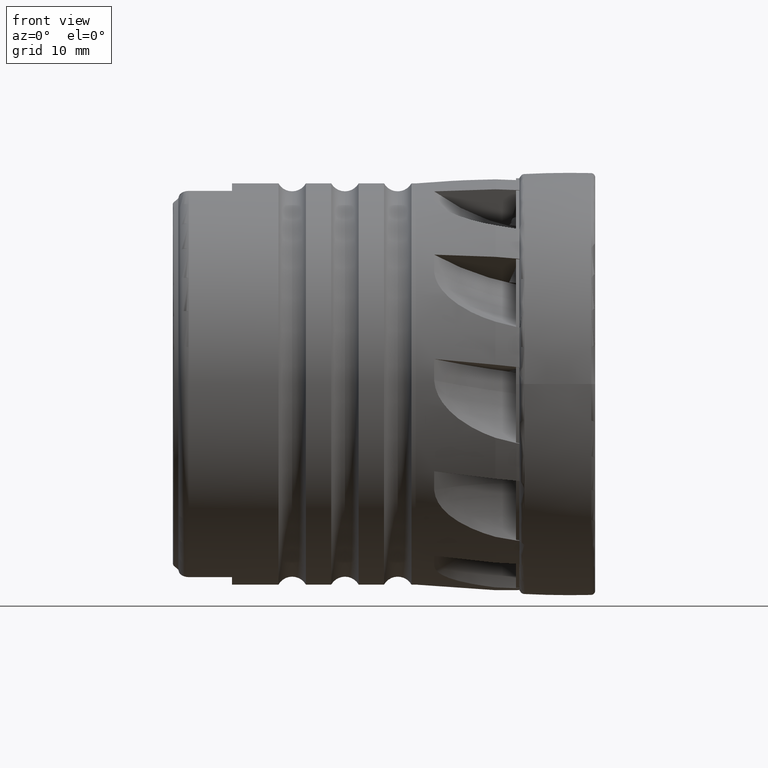
[diagram: clean part render]
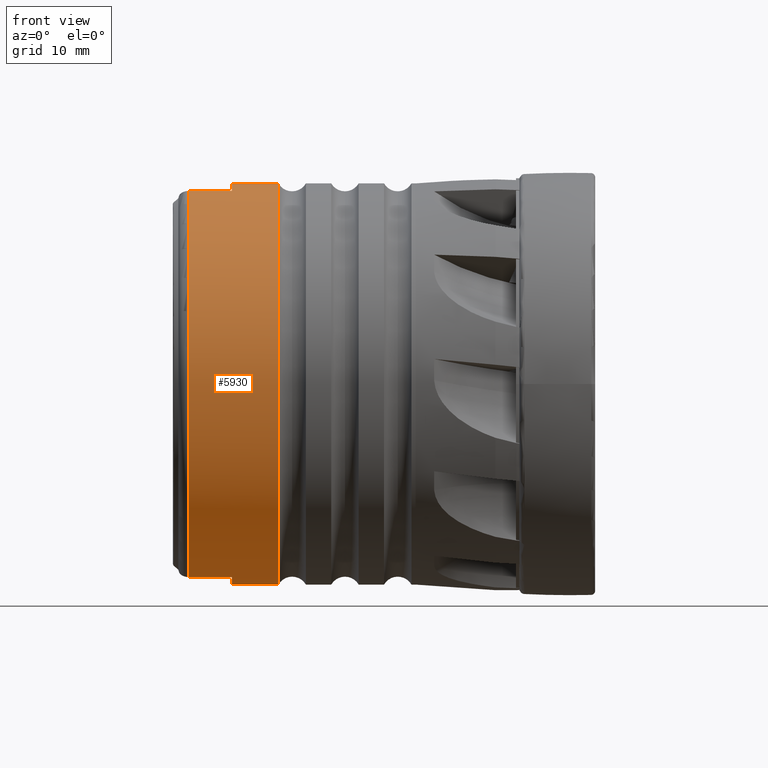
[diagram: same view with one face highlighted and labeled with its STEP entity id]
A machine part, front view. The second image highlights one B-rep face of the part: STEP entity #5930.
In plain terms, the highlighted cylindrical surface (partial cylindrical patch) has radius 19 mm, axis along (1, -0, -0).
Its self-contained STEP definition (entity closure, byte-faithful):
#22 = CARTESIAN_POINT ( 'NONE',  ( -29.54807621135331500, 0.0000000000000000000, -19.00000000000000000 ) ) ;
#33 = CARTESIAN_POINT ( 'NONE',  ( -33.94999999999999600, 0.0000000000000000000, -19.00000000000000000 ) ) ;
#53 = CARTESIAN_POINT ( 'NONE',  ( -29.54807621135331500, 2.326828918379971000E-015, 19.00000000000000000 ) ) ;
#64 = CARTESIAN_POINT ( 'NONE',  ( -33.94999999999999600, 2.326828918379971000E-015, 19.00000000000000000 ) ) ;
#190 = CARTESIAN_POINT ( 'NONE',  ( -33.94999999999999600, -5.145316538372424200, -18.29004422411141200 ) ) ;
#195 = CARTESIAN_POINT ( 'NONE',  ( -38.04999999999999000, -5.145316538372423300, -18.29004422411141200 ) ) ;
#197 = CARTESIAN_POINT ( 'NONE',  ( -33.94999999999999600, -5.145316538372426900, 18.29004422411141200 ) ) ;
#216 = CARTESIAN_POINT ( 'NONE',  ( -38.04999999999999000, -5.145316538372426000, 18.29004422411141200 ) ) ;
#370 = VERTEX_POINT ( 'NONE', #22 ) ;
#381 = VERTEX_POINT ( 'NONE', #33 ) ;
#401 = VERTEX_POINT ( 'NONE', #53 ) ;
#412 = VERTEX_POINT ( 'NONE', #64 ) ;
#1379 = VERTEX_POINT ( 'NONE', #190 ) ;
#1384 = VERTEX_POINT ( 'NONE', #195 ) ;
#1386 = VERTEX_POINT ( 'NONE', #197 ) ;
#1405 = VERTEX_POINT ( 'NONE', #216 ) ;
#2036 = CARTESIAN_POINT ( 'NONE',  ( -38.04999999999999000, 0.0000000000000000000, 0.0000000000000000000 ) ) ;
#2037 = DIRECTION ( 'NONE',  ( 1.000000000000000000, -0.0000000000000000000, -0.0000000000000000000 ) ) ;
#2038 = DIRECTION ( 'NONE',  ( 0.0000000000000000000, 0.0000000000000000000, -1.000000000000000000 ) ) ;
#2611 = EDGE_LOOP ( 'NONE', ( #2718, #2720, #2722, #2724, #2726, #2728, #2730, #2732 ) ) ;
#2718 = ORIENTED_EDGE ( 'NONE', *, *, #9003, .F. ) ;
#2720 = ORIENTED_EDGE ( 'NONE', *, *, #6105, .F. ) ;
#2722 = ORIENTED_EDGE ( 'NONE', *, *, #6106, .T. ) ;
#2724 = ORIENTED_EDGE ( 'NONE', *, *, #6088, .T. ) ;
#2726 = ORIENTED_EDGE ( 'NONE', *, *, #6107, .T. ) ;
#2728 = ORIENTED_EDGE ( 'NONE', *, *, #6108, .F. ) ;
#2730 = ORIENTED_EDGE ( 'NONE', *, *, #9005, .T. ) ;
#2732 = ORIENTED_EDGE ( 'NONE', *, *, #9011, .F. ) ;
#3160 = AXIS2_PLACEMENT_3D ( 'NONE', #7162, #7159, #7164 ) ;
#5016 = CIRCLE ( 'NONE', #5017, 19.00000000000000000 ) ;
#5017 = AXIS2_PLACEMENT_3D ( 'NONE', #2036, #2037, #2038 ) ;
#5020 = CIRCLE ( 'NONE', #5032, 19.00000000000000000 ) ;
#5030 = VECTOR ( 'NONE', #9773, 1000.000000000000000 ) ;
#5032 = AXIS2_PLACEMENT_3D ( 'NONE', #9770, #9771, #9772 ) ;
#5033 = VECTOR ( 'NONE', #9776, 1000.000000000000000 ) ;
#5034 = CIRCLE ( 'NONE', #5035, 19.00000000000000000 ) ;
#5035 = AXIS2_PLACEMENT_3D ( 'NONE', #9780, #9781, #9782 ) ;
#5930 = ADVANCED_FACE ( 'NONE', ( #7156 ), #7161, .T. ) ;
#6088 = EDGE_CURVE ( 'NONE', #1405, #1384, #5016, .T. ) ;
#6105 = EDGE_CURVE ( 'NONE', #1386, #412, #5020, .T. ) ;
#6106 = EDGE_CURVE ( 'NONE', #1386, #1405, #9769, .T. ) ;
#6107 = EDGE_CURVE ( 'NONE', #1384, #1379, #9774, .T. ) ;
#6108 = EDGE_CURVE ( 'NONE', #381, #1379, #5034, .T. ) ;
#6680 = VECTOR ( 'NONE', #10457, 1000.000000000000000 ) ;
#6682 = VECTOR ( 'NONE', #10464, 1000.000000000000000 ) ;
#6683 = CIRCLE ( 'NONE', #6695, 19.00000000000000000 ) ;
#6695 = AXIS2_PLACEMENT_3D ( 'NONE', #10480, #10481, #10482 ) ;
#7156 = FACE_OUTER_BOUND ( 'NONE', #2611, .T. ) ;
#7159 = DIRECTION ( 'NONE',  ( 1.000000000000000000, -0.0000000000000000000, -0.0000000000000000000 ) ) ;
#7161 = CYLINDRICAL_SURFACE ( 'NONE', #3160, 19.00000000000000000 ) ;
#7162 = CARTESIAN_POINT ( 'NONE',  ( 0.0000000000000000000, 0.0000000000000000000, 0.0000000000000000000 ) ) ;
#7164 = DIRECTION ( 'NONE',  ( 0.0000000000000000000, 0.0000000000000000000, -1.000000000000000000 ) ) ;
#9003 = EDGE_CURVE ( 'NONE', #412, #401, #10447, .T. ) ;
#9005 = EDGE_CURVE ( 'NONE', #381, #370, #10460, .T. ) ;
#9011 = EDGE_CURVE ( 'NONE', #401, #370, #6683, .T. ) ;
#9759 = CARTESIAN_POINT ( 'NONE',  ( -1.189267563746019400E-030, -5.145316538372434000, 18.29004422411141200 ) ) ;
#9769 = LINE ( 'NONE', #9759, #5030 ) ;
#9770 = CARTESIAN_POINT ( 'NONE',  ( -33.94999999999999600, 0.0000000000000000000, 0.0000000000000000000 ) ) ;
#9771 = DIRECTION ( 'NONE',  ( -1.000000000000000000, -0.0000000000000000000, -0.0000000000000000000 ) ) ;
#9772 = DIRECTION ( 'NONE',  ( 0.0000000000000000000, 5.329070518200750600E-015, -1.000000000000000000 ) ) ;
#9773 = DIRECTION ( 'NONE',  ( -1.000000000000000000, 0.0000000000000000000, 0.0000000000000000000 ) ) ;
#9774 = LINE ( 'NONE', #9775, #5033 ) ;
#9775 = CARTESIAN_POINT ( 'NONE',  ( -1.189267563746019200E-030, -5.145316538372431300, -18.29004422411141200 ) ) ;
#9776 = DIRECTION ( 'NONE',  ( 1.000000000000000000, -0.0000000000000000000, -0.0000000000000000000 ) ) ;
#9780 = CARTESIAN_POINT ( 'NONE',  ( -33.94999999999999600, 0.0000000000000000000, 0.0000000000000000000 ) ) ;
#9781 = DIRECTION ( 'NONE',  ( -1.000000000000000000, -0.0000000000000000000, -0.0000000000000000000 ) ) ;
#9782 = DIRECTION ( 'NONE',  ( 0.0000000000000000000, 0.0000000000000000000, -1.000000000000000000 ) ) ;
#10447 = LINE ( 'NONE', #10448, #6680 ) ;
#10448 = CARTESIAN_POINT ( 'NONE',  ( 0.0000000000000000000, 2.326828918379971000E-015, 19.00000000000000000 ) ) ;
#10456 = CARTESIAN_POINT ( 'NONE',  ( 0.0000000000000000000, 0.0000000000000000000, -19.00000000000000000 ) ) ;
#10457 = DIRECTION ( 'NONE',  ( 1.000000000000000000, -0.0000000000000000000, -0.0000000000000000000 ) ) ;
#10460 = LINE ( 'NONE', #10456, #6682 ) ;
#10464 = DIRECTION ( 'NONE',  ( 1.000000000000000000, -0.0000000000000000000, -0.0000000000000000000 ) ) ;
#10480 = CARTESIAN_POINT ( 'NONE',  ( -29.54807621135331500, 0.0000000000000000000, 0.0000000000000000000 ) ) ;
#10481 = DIRECTION ( 'NONE',  ( 1.000000000000000000, -0.0000000000000000000, -0.0000000000000000000 ) ) ;
#10482 = DIRECTION ( 'NONE',  ( 0.0000000000000000000, 0.0000000000000000000, -1.000000000000000000 ) ) ;